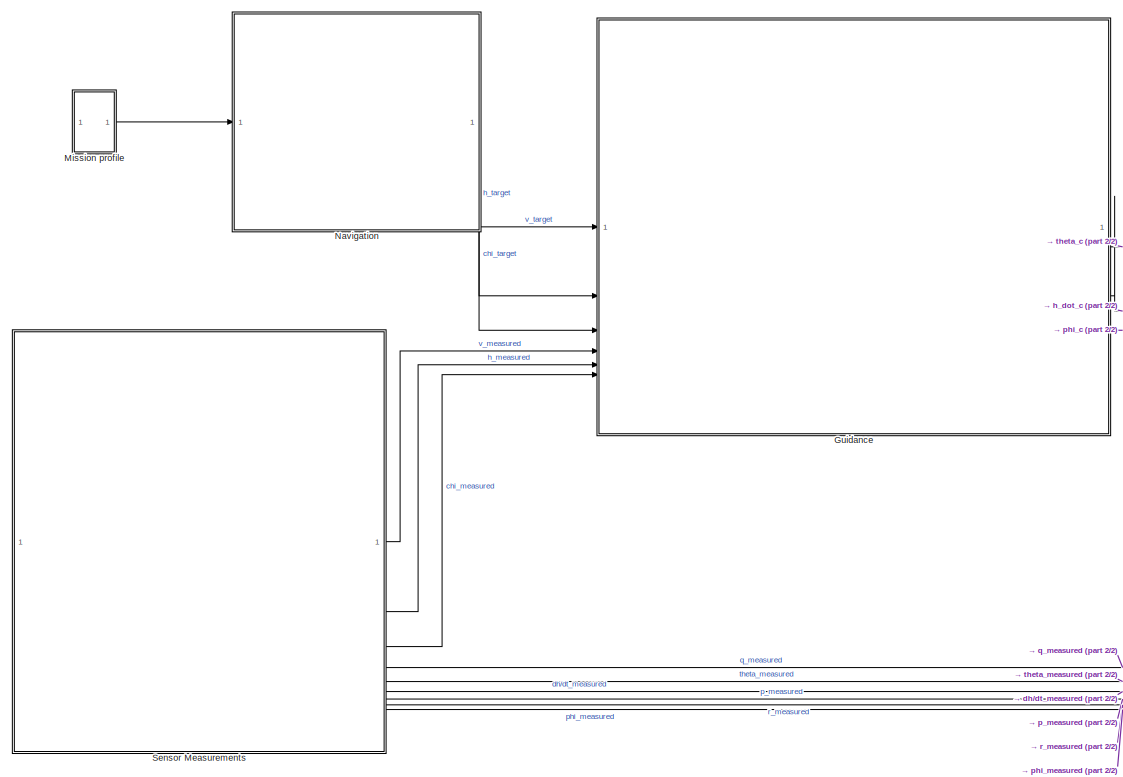
[diagram: root canvas - part 1/2, left side, full height]
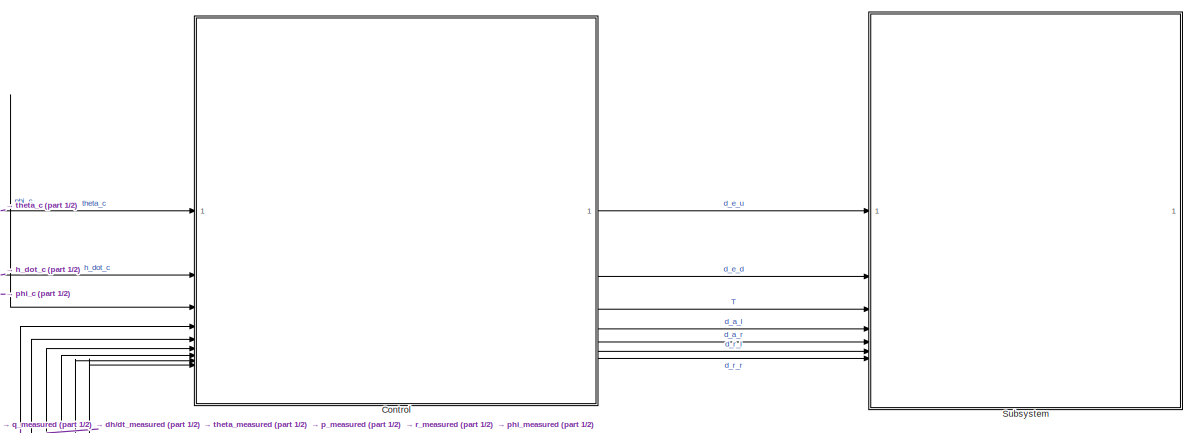
[diagram: root canvas - part 2/2, middle right region]
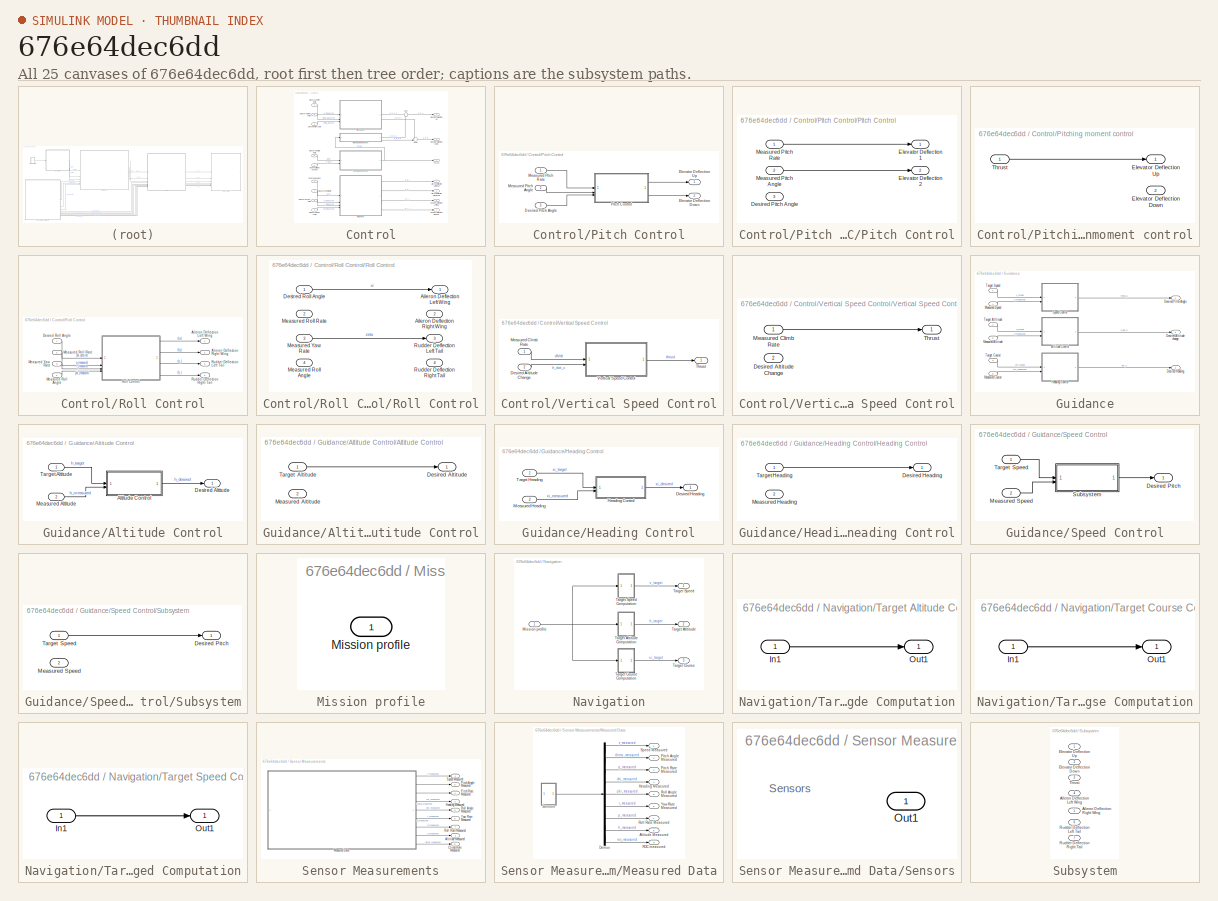
[diagram: thumbnail index - all 25 canvases of the model, root first then tree order]
MODEL slx_676e64dec6dd
KIND model
CONFIG AbsTol = auto
CONFIG EnableMultiTasking = off
CONFIG FixedStep = auto
CONFIG MaxStep = auto
CONFIG MinStep = auto
CONFIG RelTol = 1e-3
CONFIG SampleTimeConstraint = Unconstrained
CONFIG SolverName = VariableStepAuto
CONFIG StartTime = 0.0
CONFIG StopTime = 10.0
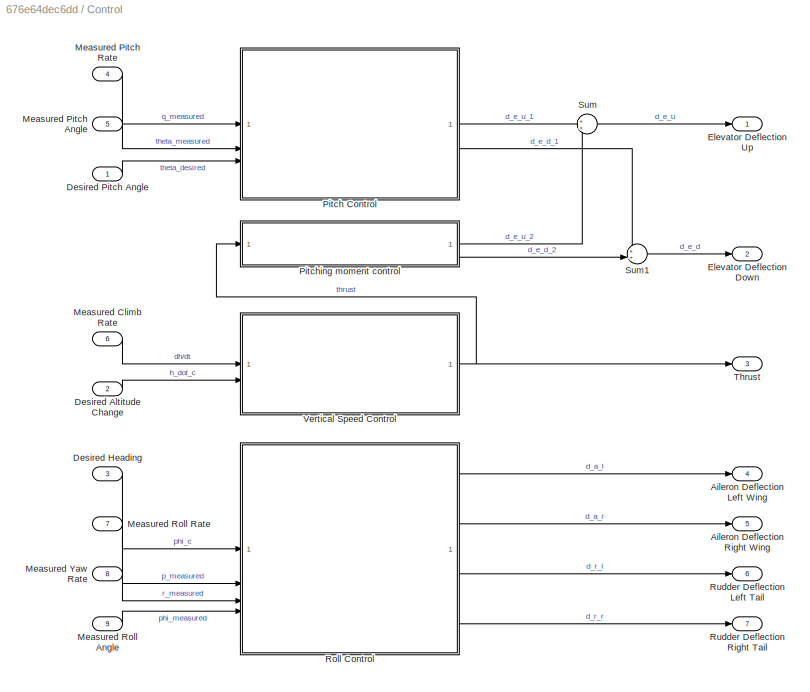
BLOCK [SubSystem] Control
BLOCK [Outport] Control/Aileron Deflection Left Wing
  Port = 4
BLOCK [Outport] Control/Aileron Deflection Right Wing
  Port = 5
BLOCK [Inport] Control/Desired Altitude Change
  Port = 2
BLOCK [Inport] Control/Desired Heading
  Port = 3
BLOCK [Inport] Control/Desired Pitch Angle
BLOCK [Outport] Control/Elevator Deflection Down
  Port = 2
BLOCK [Outport] Control/Elevator Deflection Up
BLOCK [Inport] Control/Measured Climb Rate
  Port = 6
BLOCK [Inport] Control/Measured Pitch Angle
  Port = 5
BLOCK [Inport] Control/Measured Pitch Rate
  Port = 4
BLOCK [Inport] Control/Measured Roll Angle
  Port = 9
BLOCK [Inport] Control/Measured Roll Rate
  Port = 7
BLOCK [Inport] Control/Measured Yaw Rate
  Port = 8
BLOCK [SubSystem] Control/Pitch Control
BLOCK [Inport] Control/Pitch Control/Desired Pitch Angle
  Port = 3
BLOCK [Outport] Control/Pitch Control/Elevator Deflection Down
  Port = 2
BLOCK [Outport] Control/Pitch Control/Elevator Deflection Up
BLOCK [Inport] Control/Pitch Control/Measured Pitch Angle
  Port = 2
BLOCK [Inport] Control/Pitch Control/Measured Pitch Rate
BLOCK [SubSystem] Control/Pitch Control/Pitch Control
BLOCK [Inport] Control/Pitch Control/Pitch Control/Desired Pitch Angle
  Port = 3
BLOCK [Outport] Control/Pitch Control/Pitch Control/Elevator Deflection 1
BLOCK [Outport] Control/Pitch Control/Pitch Control/Elevator Deflection 2
  Port = 2
BLOCK [Inport] Control/Pitch Control/Pitch Control/Measured Pitch Angle
  Port = 2
BLOCK [Inport] Control/Pitch Control/Pitch Control/Measured Pitch Rate
BLOCK [SubSystem] Control/Pitching moment control
BLOCK [Outport] Control/Pitching moment control/Elevator Deflection Down
  Port = 2
BLOCK [Outport] Control/Pitching moment control/Elevator Deflection Up
BLOCK [Inport] Control/Pitching moment control/Thrust
BLOCK [SubSystem] Control/Roll Control
BLOCK [Outport] Control/Roll Control/Aileron Deflection Left Wing
BLOCK [Outport] Control/Roll Control/Aileron Deflection Right Wing
  Port = 2
BLOCK [Inport] Control/Roll Control/Desired Roll Angle 
BLOCK [Inport] Control/Roll Control/Measured Roll Angle
  Port = 4
BLOCK [Inport] Control/Roll Control/Measured Roll Rate
  Port = 2
BLOCK [Inport] Control/Roll Control/Measured Yaw Rate
  Port = 3
BLOCK [SubSystem] Control/Roll Control/Roll Control
BLOCK [Outport] Control/Roll Control/Roll Control/Aileron Deflection Left Wing
BLOCK [Outport] Control/Roll Control/Roll Control/Aileron Deflection Right Wing
  Port = 2
BLOCK [Inport] Control/Roll Control/Roll Control/Desired Roll Angle
BLOCK [Inport] Control/Roll Control/Roll Control/Measured Roll Angle
  Port = 4
BLOCK [Inport] Control/Roll Control/Roll Control/Measured Roll Rate
  Port = 2
BLOCK [Inport] Control/Roll Control/Roll Control/Measured Yaw Rate
  Port = 3
BLOCK [Outport] Control/Roll Control/Roll Control/Rudder Deflection Left Tail
  Port = 3
BLOCK [Outport] Control/Roll Control/Roll Control/Rudder Deflection Right Tail
  Port = 4
BLOCK [Outport] Control/Roll Control/Rudder Deflection Left Tail
  Port = 3
BLOCK [Outport] Control/Roll Control/Rudder Deflection Right Tail
  Port = 4
BLOCK [Outport] Control/Rudder Deflection Left Tail
  Port = 6
BLOCK [Outport] Control/Rudder Deflection Right Tail
  Port = 7
BLOCK [Sum] Control/Sum
BLOCK [Sum] Control/Sum1
  Inputs = ++|
BLOCK [Outport] Control/Thrust
  Port = 3
BLOCK [SubSystem] Control/Vertical Speed Control
BLOCK [Inport] Control/Vertical Speed Control/Desired Altitude Change
  Port = 2
BLOCK [Inport] Control/Vertical Speed Control/Measured Climb Rate
BLOCK [Outport] Control/Vertical Speed Control/Thrust
BLOCK [SubSystem] Control/Vertical Speed Control/Vertical Speed Control
BLOCK [Inport] Control/Vertical Speed Control/Vertical Speed Control/Desired Altitude Change
  Port = 2
BLOCK [Inport] Control/Vertical Speed Control/Vertical Speed Control/Measured Climb Rate
BLOCK [Outport] Control/Vertical Speed Control/Vertical Speed Control/Thrust
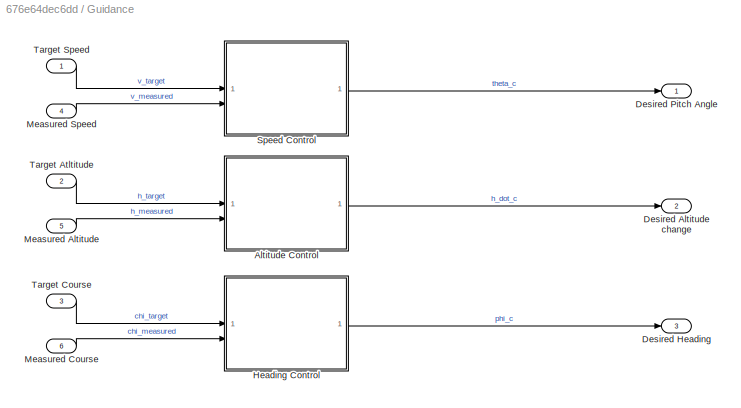
BLOCK [SubSystem] Guidance
BLOCK [SubSystem] Guidance/Altitude Control
BLOCK [SubSystem] Guidance/Altitude Control/Altitude Control
BLOCK [Outport] Guidance/Altitude Control/Altitude Control/Desired Altitude
BLOCK [Inport] Guidance/Altitude Control/Altitude Control/Measured Altitude
  Port = 2
BLOCK [Inport] Guidance/Altitude Control/Altitude Control/Target Altitude
BLOCK [Outport] Guidance/Altitude Control/Desired Altitude
BLOCK [Inport] Guidance/Altitude Control/Measured Altitude
  Port = 2
BLOCK [Inport] Guidance/Altitude Control/Target Altitude
BLOCK [Outport] Guidance/Desired Altitude change
  Port = 2
BLOCK [Outport] Guidance/Desired Heading
  Port = 3
BLOCK [Outport] Guidance/Desired Pitch Angle
BLOCK [SubSystem] Guidance/Heading Control
BLOCK [Outport] Guidance/Heading Control/Desired Heading
BLOCK [SubSystem] Guidance/Heading Control/Heading Control
BLOCK [Outport] Guidance/Heading Control/Heading Control/Desired Heading
BLOCK [Inport] Guidance/Heading Control/Heading Control/Measured Heading
  Port = 2
BLOCK [Inport] Guidance/Heading Control/Heading Control/Target Heading
BLOCK [Inport] Guidance/Heading Control/Measured Heading
  Port = 2
BLOCK [Inport] Guidance/Heading Control/Target Heading
BLOCK [Inport] Guidance/Measured Altitude
  Port = 5
BLOCK [Inport] Guidance/Measured Course
  Port = 6
BLOCK [Inport] Guidance/Measured Speed
  Port = 4
BLOCK [SubSystem] Guidance/Speed Control
BLOCK [Outport] Guidance/Speed Control/Desired Pitch
BLOCK [Inport] Guidance/Speed Control/Measured Speed
  Port = 2
BLOCK [SubSystem] Guidance/Speed Control/Subsystem
BLOCK [Outport] Guidance/Speed Control/Subsystem/Desired Pitch
BLOCK [Inport] Guidance/Speed Control/Subsystem/Measured Speed
  Port = 2
BLOCK [Inport] Guidance/Speed Control/Subsystem/Target Speed
BLOCK [Inport] Guidance/Speed Control/Target Speed
BLOCK [Inport] Guidance/Target Atltitude
  Port = 2
BLOCK [Inport] Guidance/Target Course
  Port = 3
BLOCK [Inport] Guidance/Target Speed
BLOCK [SubSystem] Mission profile
BLOCK [Outport] Mission profile/Mission profile
BLOCK [SubSystem] Navigation
BLOCK [Inport] Navigation/Mission profile
BLOCK [SubSystem] Navigation/Target Altitude Computation
BLOCK [Inport] Navigation/Target Altitude Computation/In1
BLOCK [Outport] Navigation/Target Altitude Computation/Out1
BLOCK [Outport] Navigation/Target Atltitude
  Port = 2
BLOCK [Outport] Navigation/Target Course
  Port = 3
BLOCK [SubSystem] Navigation/Target Course Computation
BLOCK [Inport] Navigation/Target Course Computation/In1
BLOCK [Outport] Navigation/Target Course Computation/Out1
BLOCK [Outport] Navigation/Target Speed
BLOCK [SubSystem] Navigation/Target Speed Computation
BLOCK [Inport] Navigation/Target Speed Computation/In1
BLOCK [Outport] Navigation/Target Speed Computation/Out1
BLOCK [SubSystem] Sensor Measurements
BLOCK [Outport] Sensor Measurements/Altitude Measured
  Port = 2
BLOCK [Outport] Sensor Measurements/Climb Rate Measured
  Port = 6
BLOCK [Outport] Sensor Measurements/Heading Measured
  Port = 3
BLOCK [SubSystem] Sensor Measurements/Measured Data
BLOCK [Outport] Sensor Measurements/Measured Data/Altitude Measured
  Port = 8
BLOCK [Demux] Sensor Measurements/Measured Data/Demux
  Outputs = 9
BLOCK [Outport] Sensor Measurements/Measured Data/Heading Measured
  Port = 4
BLOCK [Outport] Sensor Measurements/Measured Data/Pitch Angle Measured
  Port = 2
BLOCK [Outport] Sensor Measurements/Measured Data/Pitch Rate Measured
  Port = 3
BLOCK [Outport] Sensor Measurements/Measured Data/ROC measured
  Port = 9
BLOCK [Outport] Sensor Measurements/Measured Data/Roll Angle Measured
  Port = 5
BLOCK [Outport] Sensor Measurements/Measured Data/Roll Rate Measured
  Port = 7
BLOCK [SubSystem] Sensor Measurements/Measured Data/Sensors
BLOCK [Outport] Sensor Measurements/Measured Data/Sensors/Out1
BLOCK [Outport] Sensor Measurements/Measured Data/Speed Measured
BLOCK [Outport] Sensor Measurements/Measured Data/Yaw Rate Measured
  Port = 6
BLOCK [Outport] Sensor Measurements/Pitch Angle Measured
  Port = 5
BLOCK [Outport] Sensor Measurements/Pitch Rate Measured
  Port = 4
BLOCK [Outport] Sensor Measurements/Roll  Angle Measured
  Port = 9
BLOCK [Outport] Sensor Measurements/Roll Rate Measured
  Port = 7
BLOCK [Outport] Sensor Measurements/Speed Measured
BLOCK [Outport] Sensor Measurements/Yaw Rate Measured
  Port = 8
BLOCK [SubSystem] Subsystem
BLOCK [Inport] Subsystem/Aileron Deflection Left Wing
  Port = 4
BLOCK [Inport] Subsystem/Aileron Deflection Right Wing
  Port = 5
BLOCK [Inport] Subsystem/Elevator Deflection Down
  Port = 2
BLOCK [Inport] Subsystem/Elevator Deflection Up
BLOCK [Inport] Subsystem/Rudder Deflection Left Tail
  Port = 6
BLOCK [Inport] Subsystem/Rudder Deflection Right Tail
  Port = 7
BLOCK [Inport] Subsystem/Thrust
  Port = 3
ANNOTATION Sensor Measurements/Measured Data/Sensors: Sensors
LINE Control/Desired Altitude Change:1 -> Control/Vertical Speed Control:2
LINE Control/Desired Heading:1 -> Control/Roll Control:1
LINE Control/Desired Pitch Angle:1 -> Control/Pitch Control:3
LINE Control/Measured Climb Rate:1 -> Control/Vertical Speed Control:1
LINE Control/Measured Pitch Angle:1 -> Control/Pitch Control:2
LINE Control/Measured Pitch Rate:1 -> Control/Pitch Control:1
LINE Control/Measured Roll Angle:1 -> Control/Roll Control:4
LINE Control/Measured Roll Rate:1 -> Control/Roll Control:2
LINE Control/Measured Yaw Rate:1 -> Control/Roll Control:3
LINE Control/Pitch Control/Desired Pitch Angle:1 -> Control/Pitch Control/Pitch Control:3
LINE Control/Pitch Control/Measured Pitch Angle:1 -> Control/Pitch Control/Pitch Control:2
LINE Control/Pitch Control/Measured Pitch Rate:1 -> Control/Pitch Control/Pitch Control:1
LINE Control/Pitch Control/Pitch Control/Measured Pitch Angle:1 -> Control/Pitch Control/Pitch Control/Elevator Deflection 2:1
LINE Control/Pitch Control/Pitch Control/Measured Pitch Rate:1 -> Control/Pitch Control/Pitch Control/Elevator Deflection 1:1
LINE Control/Pitch Control/Pitch Control:1 -> Control/Pitch Control/Elevator Deflection Up:1
LINE Control/Pitch Control/Pitch Control:2 -> Control/Pitch Control/Elevator Deflection Down:1
LINE Control/Pitch Control:1 -> Control/Sum:1
LINE Control/Pitch Control:2 -> Control/Sum1:1
LINE Control/Pitching moment control/Thrust:1 -> Control/Pitching moment control/Elevator Deflection Up:1
LINE Control/Pitching moment control:1 -> Control/Sum:2
LINE Control/Pitching moment control:2 -> Control/Sum1:2
LINE Control/Roll Control/Desired Roll Angle :1 -> Control/Roll Control/Roll Control:1
LINE Control/Roll Control/Measured Roll Angle:1 -> Control/Roll Control/Roll Control:4
LINE Control/Roll Control/Measured Roll Rate:1 -> Control/Roll Control/Roll Control:2
LINE Control/Roll Control/Measured Yaw Rate:1 -> Control/Roll Control/Roll Control:3
LINE Control/Roll Control/Roll Control/Desired Roll Angle:1 -> Control/Roll Control/Roll Control/Aileron Deflection Left Wing:1
LINE Control/Roll Control/Roll Control/Measured Yaw Rate:1 -> Control/Roll Control/Roll Control/Rudder Deflection Left Tail:1
LINE Control/Roll Control/Roll Control:1 -> Control/Roll Control/Aileron Deflection Left Wing:1
LINE Control/Roll Control/Roll Control:2 -> Control/Roll Control/Aileron Deflection Right Wing:1
LINE Control/Roll Control/Roll Control:3 -> Control/Roll Control/Rudder Deflection Left Tail:1
LINE Control/Roll Control/Roll Control:4 -> Control/Roll Control/Rudder Deflection Right Tail:1
LINE Control/Roll Control:1 -> Control/Aileron Deflection Left Wing:1
LINE Control/Roll Control:2 -> Control/Aileron Deflection Right Wing:1
LINE Control/Roll Control:3 -> Control/Rudder Deflection Left Tail:1
LINE Control/Roll Control:4 -> Control/Rudder Deflection Right Tail:1
LINE Control/Sum1:1 -> Control/Elevator Deflection Down:1
LINE Control/Sum:1 -> Control/Elevator Deflection Up:1
LINE Control/Vertical Speed Control/Desired Altitude Change:1 -> Control/Vertical Speed Control/Vertical Speed Control:2
LINE Control/Vertical Speed Control/Measured Climb Rate:1 -> Control/Vertical Speed Control/Vertical Speed Control:1
LINE Control/Vertical Speed Control/Vertical Speed Control/Measured Climb Rate:1 -> Control/Vertical Speed Control/Vertical Speed Control/Thrust:1
LINE Control/Vertical Speed Control/Vertical Speed Control:1 -> Control/Vertical Speed Control/Thrust:1
NET Control/Vertical Speed Control:1 -> Control/Pitching moment control:1, Control/Thrust:1
LINE Control:1 -> Subsystem:1
LINE Control:2 -> Subsystem:2
LINE Control:3 -> Subsystem:3
LINE Control:4 -> Subsystem:4
LINE Control:5 -> Subsystem:5
LINE Control:6 -> Subsystem:6
LINE Control:7 -> Subsystem:7
LINE Guidance/Altitude Control/Altitude Control/Target Altitude:1 -> Guidance/Altitude Control/Altitude Control/Desired Altitude:1
LINE Guidance/Altitude Control/Altitude Control:1 -> Guidance/Altitude Control/Desired Altitude:1
LINE Guidance/Altitude Control/Measured Altitude:1 -> Guidance/Altitude Control/Altitude Control:2
LINE Guidance/Altitude Control/Target Altitude:1 -> Guidance/Altitude Control/Altitude Control:1
LINE Guidance/Altitude Control:1 -> Guidance/Desired Altitude change:1
LINE Guidance/Heading Control/Heading Control/Target Heading:1 -> Guidance/Heading Control/Heading Control/Desired Heading:1
LINE Guidance/Heading Control/Heading Control:1 -> Guidance/Heading Control/Desired Heading:1
LINE Guidance/Heading Control/Measured Heading:1 -> Guidance/Heading Control/Heading Control:2
LINE Guidance/Heading Control/Target Heading:1 -> Guidance/Heading Control/Heading Control:1
LINE Guidance/Heading Control:1 -> Guidance/Desired Heading:1
LINE Guidance/Measured Altitude:1 -> Guidance/Altitude Control:2
LINE Guidance/Measured Course:1 -> Guidance/Heading Control:2
LINE Guidance/Measured Speed:1 -> Guidance/Speed Control:2
LINE Guidance/Speed Control/Measured Speed:1 -> Guidance/Speed Control/Subsystem:2
LINE Guidance/Speed Control/Subsystem/Target Speed:1 -> Guidance/Speed Control/Subsystem/Desired Pitch:1
LINE Guidance/Speed Control/Subsystem:1 -> Guidance/Speed Control/Desired Pitch:1
LINE Guidance/Speed Control/Target Speed:1 -> Guidance/Speed Control/Subsystem:1
LINE Guidance/Speed Control:1 -> Guidance/Desired Pitch Angle:1
LINE Guidance/Target Atltitude:1 -> Guidance/Altitude Control:1
LINE Guidance/Target Course:1 -> Guidance/Heading Control:1
LINE Guidance/Target Speed:1 -> Guidance/Speed Control:1
LINE Guidance:1 -> Control:1
LINE Guidance:2 -> Control:2
LINE Guidance:3 -> Control:3
LINE Mission profile:1 -> Navigation:1
NET Navigation/Mission profile:1 -> Navigation/Target Altitude Computation:1, Navigation/Target Course Computation:1, Navigation/Target Speed Computation:1
LINE Navigation/Target Altitude Computation/In1:1 -> Navigation/Target Altitude Computation/Out1:1
LINE Navigation/Target Altitude Computation:1 -> Navigation/Target Atltitude:1
LINE Navigation/Target Course Computation/In1:1 -> Navigation/Target Course Computation/Out1:1
LINE Navigation/Target Course Computation:1 -> Navigation/Target Course:1
LINE Navigation/Target Speed Computation/In1:1 -> Navigation/Target Speed Computation/Out1:1
LINE Navigation/Target Speed Computation:1 -> Navigation/Target Speed:1
LINE Navigation:1 -> Guidance:1
LINE Navigation:2 -> Guidance:2
LINE Navigation:3 -> Guidance:3
LINE Sensor Measurements/Measured Data/Demux:1 -> Sensor Measurements/Measured Data/Speed Measured:1
LINE Sensor Measurements/Measured Data/Demux:2 -> Sensor Measurements/Measured Data/Pitch Angle Measured:1
LINE Sensor Measurements/Measured Data/Demux:3 -> Sensor Measurements/Measured Data/Pitch Rate Measured:1
LINE Sensor Measurements/Measured Data/Demux:4 -> Sensor Measurements/Measured Data/Heading Measured:1
LINE Sensor Measurements/Measured Data/Demux:5 -> Sensor Measurements/Measured Data/Roll Angle Measured:1
LINE Sensor Measurements/Measured Data/Demux:6 -> Sensor Measurements/Measured Data/Yaw Rate Measured:1
LINE Sensor Measurements/Measured Data/Demux:7 -> Sensor Measurements/Measured Data/Roll Rate Measured:1
LINE Sensor Measurements/Measured Data/Demux:8 -> Sensor Measurements/Measured Data/Altitude Measured:1
LINE Sensor Measurements/Measured Data/Demux:9 -> Sensor Measurements/Measured Data/ROC measured:1
LINE Sensor Measurements/Measured Data/Sensors:1 -> Sensor Measurements/Measured Data/Demux:1
LINE Sensor Measurements/Measured Data:1 -> Sensor Measurements/Speed Measured:1
LINE Sensor Measurements/Measured Data:2 -> Sensor Measurements/Pitch Angle Measured:1
LINE Sensor Measurements/Measured Data:3 -> Sensor Measurements/Pitch Rate Measured:1
LINE Sensor Measurements/Measured Data:4 -> Sensor Measurements/Heading Measured:1
LINE Sensor Measurements/Measured Data:5 -> Sensor Measurements/Roll  Angle Measured:1
LINE Sensor Measurements/Measured Data:6 -> Sensor Measurements/Yaw Rate Measured:1
LINE Sensor Measurements/Measured Data:7 -> Sensor Measurements/Roll Rate Measured:1
LINE Sensor Measurements/Measured Data:8 -> Sensor Measurements/Altitude Measured:1
LINE Sensor Measurements/Measured Data:9 -> Sensor Measurements/Climb Rate Measured:1
LINE Sensor Measurements:1 -> Guidance:4
LINE Sensor Measurements:2 -> Guidance:5
LINE Sensor Measurements:3 -> Guidance:6
LINE Sensor Measurements:4 -> Control:4
LINE Sensor Measurements:5 -> Control:5
LINE Sensor Measurements:6 -> Control:6
LINE Sensor Measurements:7 -> Control:7
LINE Sensor Measurements:8 -> Control:8
LINE Sensor Measurements:9 -> Control:9
note: NET lines group one-source signal fan-out (src -> all destinations, sorted); 1:1 wires keep LINE
